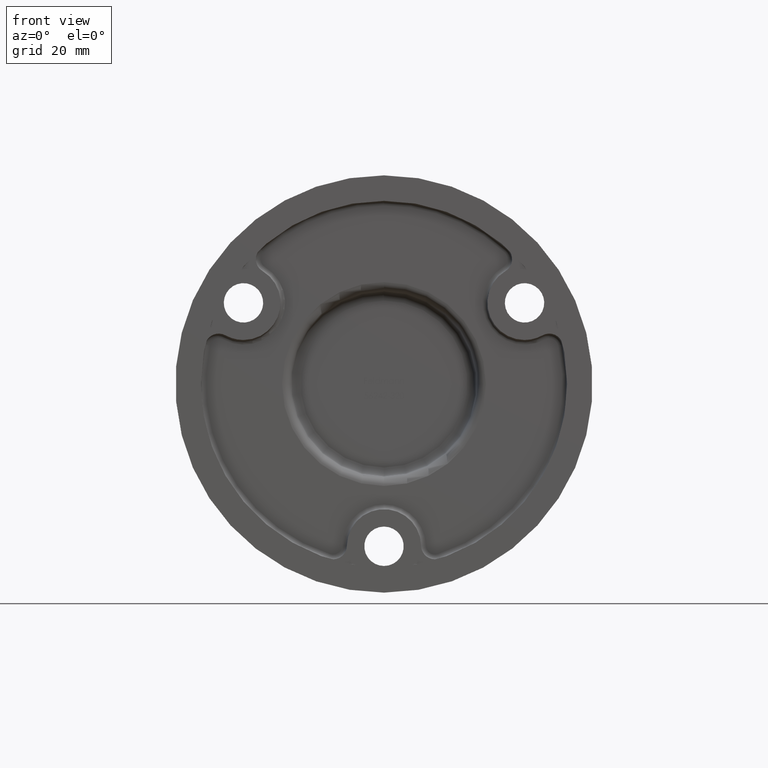
[diagram: clean part render]
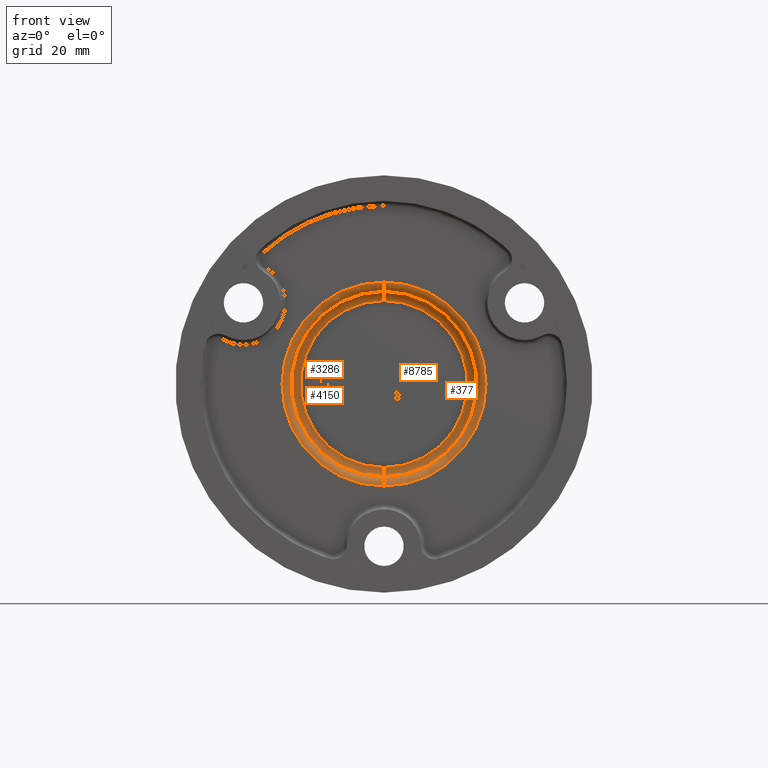
[diagram: same view with one multi-face feature highlighted, each face labeled with its STEP entity id]
A machine part, front view. The highlighted faces form ONE feature: a constant-radius fillet chain: 4 tangent blend faces with common blend radius 2 mm. The faces share edges in the B-rep.
Their STEP definitions:
[1] entity #3286 (Torus):
#18 = DIRECTION ( 'NONE',  ( 1.000000000000000000, 0.000000000000000000, 1.224646799147353207E-16 ) ) ;
#1205 = CIRCLE ( 'NONE', #9364, 22.00000000000000000 ) ;
#1368 = EDGE_LOOP ( 'NONE', ( #18055, #20402, #2345, #5283 ) ) ;
#1877 = AXIS2_PLACEMENT_3D ( 'NONE', #7322, #20863, #9289 ) ;
#2345 = ORIENTED_EDGE ( 'NONE', *, *, #13814, .T. ) ;
#3090 = CIRCLE ( 'NONE', #1877, 20.00000000000000000 ) ;
#3286 = ADVANCED_FACE ( 'NONE', ( #23684 ), #7331, .T. ) ;
#3474 = VERTEX_POINT ( 'NONE', #5093 ) ;
#5093 = CARTESIAN_POINT ( 'NONE',  ( 2.694222958124176809E-15, 2.000000000000000000, -22.00000000000000000 ) ) ;
#5283 = ORIENTED_EDGE ( 'NONE', *, *, #8832, .F. ) ;
#6933 = EDGE_CURVE ( 'NONE', #19809, #3474, #24028, .T. ) ;
#7322 = CARTESIAN_POINT ( 'NONE',  ( 0.000000000000000000, 4.000000000000000000, 0.000000000000000000 ) ) ;
#7331 = TOROIDAL_SURFACE ( 'NONE', #12419, 22.00000000000000000, 2.000000000000000000 ) ;
#8236 = DIRECTION ( 'NONE',  ( -0.000000000000000000, 1.000000000000000000, -0.000000000000000000 ) ) ;
#8330 = EDGE_CURVE ( 'NONE', #13752, #19809, #3090, .T. ) ;
#8832 = EDGE_CURVE ( 'NONE', #3474, #13420, #1205, .T. ) ;
#9172 = AXIS2_PLACEMENT_3D ( 'NONE', #10038, #18, #11739 ) ;
#9252 = CARTESIAN_POINT ( 'NONE',  ( 2.571758278209441661E-15, 4.000000000000000000, -20.00000000000000000 ) ) ;
#9289 = DIRECTION ( 'NONE',  ( 0.000000000000000000, 0.000000000000000000, 1.000000000000000000 ) ) ;
#9364 = AXIS2_PLACEMENT_3D ( 'NONE', #12062, #8236, #19993 ) ;
#10038 = CARTESIAN_POINT ( 'NONE',  ( 2.694222958124176809E-15, 4.000000000000000000, -22.00000000000000000 ) ) ;
#11093 = CIRCLE ( 'NONE', #15776, 2.000000000000001776 ) ;
#11739 = DIRECTION ( 'NONE',  ( 1.224646799147351482E-16, 0.000000000000000000, -1.000000000000000000 ) ) ;
#12062 = CARTESIAN_POINT ( 'NONE',  ( 0.000000000000000000, 2.000000000000000000, 0.000000000000000000 ) ) ;
#12063 = CARTESIAN_POINT ( 'NONE',  ( 0.000000000000000000, 4.000000000000000000, 20.00000000000000000 ) ) ;
#12222 = DIRECTION ( 'NONE',  ( -1.000000000000000000, 0.000000000000000000, 0.000000000000000000 ) ) ;
#12419 = AXIS2_PLACEMENT_3D ( 'NONE', #13897, #13723, #15837 ) ;
#13420 = VERTEX_POINT ( 'NONE', #15185 ) ;
#13723 = DIRECTION ( 'NONE',  ( -0.000000000000000000, 1.000000000000000000, -0.000000000000000000 ) ) ;
#13752 = VERTEX_POINT ( 'NONE', #12063 ) ;
#13814 = EDGE_CURVE ( 'NONE', #13752, #13420, #11093, .T. ) ;
#13897 = CARTESIAN_POINT ( 'NONE',  ( 0.000000000000000000, 4.000000000000000000, 0.000000000000000000 ) ) ;
#15185 = CARTESIAN_POINT ( 'NONE',  ( 0.000000000000000000, 2.000000000000000000, 22.00000000000000000 ) ) ;
#15776 = AXIS2_PLACEMENT_3D ( 'NONE', #22035, #12222, #18130 ) ;
#15837 = DIRECTION ( 'NONE',  ( 0.000000000000000000, 0.000000000000000000, 1.000000000000000000 ) ) ;
#18055 = ORIENTED_EDGE ( 'NONE', *, *, #6933, .F. ) ;
#18130 = DIRECTION ( 'NONE',  ( 0.000000000000000000, 0.000000000000000000, 1.000000000000000000 ) ) ;
#19809 = VERTEX_POINT ( 'NONE', #9252 ) ;
#19993 = DIRECTION ( 'NONE',  ( 0.000000000000000000, 0.000000000000000000, 1.000000000000000000 ) ) ;
#20402 = ORIENTED_EDGE ( 'NONE', *, *, #8330, .F. ) ;
#20863 = DIRECTION ( 'NONE',  ( 0.000000000000000000, -1.000000000000000000, 0.000000000000000000 ) ) ;
#22035 = CARTESIAN_POINT ( 'NONE',  ( 0.000000000000000000, 4.000000000000000000, 22.00000000000000000 ) ) ;
#23684 = FACE_OUTER_BOUND ( 'NONE', #1368, .T. ) ;
#24028 = CIRCLE ( 'NONE', #9172, 2.000000000000001776 ) ;
[2] entity #377 (Torus):
#18 = DIRECTION ( 'NONE',  ( 1.000000000000000000, 0.000000000000000000, 1.224646799147353207E-16 ) ) ;
#377 = ADVANCED_FACE ( 'NONE', ( #7757 ), #13817, .T. ) ;
#676 = DIRECTION ( 'NONE',  ( 0.000000000000000000, 0.000000000000000000, 1.000000000000000000 ) ) ;
#713 = EDGE_LOOP ( 'NONE', ( #7455, #10548, #18352, #2077 ) ) ;
#748 = EDGE_CURVE ( 'NONE', #13420, #3474, #18640, .T. ) ;
#901 = AXIS2_PLACEMENT_3D ( 'NONE', #18581, #22469, #11151 ) ;
#2077 = ORIENTED_EDGE ( 'NONE', *, *, #13814, .F. ) ;
#2392 = CARTESIAN_POINT ( 'NONE',  ( 0.000000000000000000, 4.000000000000000000, 0.000000000000000000 ) ) ;
#3474 = VERTEX_POINT ( 'NONE', #5093 ) ;
#4412 = EDGE_CURVE ( 'NONE', #19809, #13752, #17702, .T. ) ;
#5093 = CARTESIAN_POINT ( 'NONE',  ( 2.694222958124176809E-15, 2.000000000000000000, -22.00000000000000000 ) ) ;
#6446 = DIRECTION ( 'NONE',  ( -0.000000000000000000, 1.000000000000000000, -0.000000000000000000 ) ) ;
#6933 = EDGE_CURVE ( 'NONE', #19809, #3474, #24028, .T. ) ;
#7455 = ORIENTED_EDGE ( 'NONE', *, *, #4412, .F. ) ;
#7757 = FACE_OUTER_BOUND ( 'NONE', #713, .T. ) ;
#8624 = AXIS2_PLACEMENT_3D ( 'NONE', #2392, #6446, #676 ) ;
#9172 = AXIS2_PLACEMENT_3D ( 'NONE', #10038, #18, #11739 ) ;
#9252 = CARTESIAN_POINT ( 'NONE',  ( 2.571758278209441661E-15, 4.000000000000000000, -20.00000000000000000 ) ) ;
#10038 = CARTESIAN_POINT ( 'NONE',  ( 2.694222958124176809E-15, 4.000000000000000000, -22.00000000000000000 ) ) ;
#10548 = ORIENTED_EDGE ( 'NONE', *, *, #6933, .T. ) ;
#11093 = CIRCLE ( 'NONE', #15776, 2.000000000000001776 ) ;
#11151 = DIRECTION ( 'NONE',  ( 0.000000000000000000, 0.000000000000000000, 1.000000000000000000 ) ) ;
#11739 = DIRECTION ( 'NONE',  ( 1.224646799147351482E-16, 0.000000000000000000, -1.000000000000000000 ) ) ;
#12063 = CARTESIAN_POINT ( 'NONE',  ( 0.000000000000000000, 4.000000000000000000, 20.00000000000000000 ) ) ;
#12222 = DIRECTION ( 'NONE',  ( -1.000000000000000000, 0.000000000000000000, 0.000000000000000000 ) ) ;
#13420 = VERTEX_POINT ( 'NONE', #15185 ) ;
#13752 = VERTEX_POINT ( 'NONE', #12063 ) ;
#13814 = EDGE_CURVE ( 'NONE', #13752, #13420, #11093, .T. ) ;
#13817 = TOROIDAL_SURFACE ( 'NONE', #8624, 22.00000000000000000, 2.000000000000000000 ) ;
#13969 = DIRECTION ( 'NONE',  ( 0.000000000000000000, 0.000000000000000000, 1.000000000000000000 ) ) ;
#15108 = AXIS2_PLACEMENT_3D ( 'NONE', #19883, #20053, #13969 ) ;
#15185 = CARTESIAN_POINT ( 'NONE',  ( 0.000000000000000000, 2.000000000000000000, 22.00000000000000000 ) ) ;
#15776 = AXIS2_PLACEMENT_3D ( 'NONE', #22035, #12222, #18130 ) ;
#17702 = CIRCLE ( 'NONE', #901, 20.00000000000000000 ) ;
#18130 = DIRECTION ( 'NONE',  ( 0.000000000000000000, 0.000000000000000000, 1.000000000000000000 ) ) ;
#18352 = ORIENTED_EDGE ( 'NONE', *, *, #748, .F. ) ;
#18581 = CARTESIAN_POINT ( 'NONE',  ( 0.000000000000000000, 4.000000000000000000, 0.000000000000000000 ) ) ;
#18640 = CIRCLE ( 'NONE', #15108, 22.00000000000000000 ) ;
#19809 = VERTEX_POINT ( 'NONE', #9252 ) ;
#19883 = CARTESIAN_POINT ( 'NONE',  ( 0.000000000000000000, 2.000000000000000000, 0.000000000000000000 ) ) ;
#20053 = DIRECTION ( 'NONE',  ( -0.000000000000000000, 1.000000000000000000, -0.000000000000000000 ) ) ;
#22035 = CARTESIAN_POINT ( 'NONE',  ( 0.000000000000000000, 4.000000000000000000, 22.00000000000000000 ) ) ;
#22469 = DIRECTION ( 'NONE',  ( 0.000000000000000000, -1.000000000000000000, 0.000000000000000000 ) ) ;
#24028 = CIRCLE ( 'NONE', #9172, 2.000000000000001776 ) ;
[3] entity #8785 (Torus):
#159 = CIRCLE ( 'NONE', #9422, 2.000000000000001776 ) ;
#378 = EDGE_CURVE ( 'NONE', #15911, #13752, #159, .T. ) ;
#484 = DIRECTION ( 'NONE',  ( 0.000000000000000000, 0.000000000000000000, -1.000000000000000000 ) ) ;
#724 = ORIENTED_EDGE ( 'NONE', *, *, #18291, .T. ) ;
#901 = AXIS2_PLACEMENT_3D ( 'NONE', #18581, #22469, #11151 ) ;
#1521 = DIRECTION ( 'NONE',  ( -1.000000000000000000, -0.000000000000000000, -0.000000000000000000 ) ) ;
#2048 = AXIS2_PLACEMENT_3D ( 'NONE', #21553, #8193, #484 ) ;
#2126 = CIRCLE ( 'NONE', #14570, 2.000000000000001776 ) ;
#2477 = ORIENTED_EDGE ( 'NONE', *, *, #378, .F. ) ;
#2483 = DIRECTION ( 'NONE',  ( 0.000000000000000000, -1.000000000000000000, 0.000000000000000000 ) ) ;
#3343 = CARTESIAN_POINT ( 'NONE',  ( 0.000000000000000000, 4.000000000000000000, -18.00000000000000355 ) ) ;
#4412 = EDGE_CURVE ( 'NONE', #19809, #13752, #17702, .T. ) ;
#5791 = AXIS2_PLACEMENT_3D ( 'NONE', #13581, #2483, #18046 ) ;
#8152 = CARTESIAN_POINT ( 'NONE',  ( 2.204364238465235822E-15, 4.000000000000000000, 18.00000000000000355 ) ) ;
#8193 = DIRECTION ( 'NONE',  ( 0.000000000000000000, -1.000000000000000000, 0.000000000000000000 ) ) ;
#8320 = CARTESIAN_POINT ( 'NONE',  ( 2.326828918379971365E-15, 6.000000000000000000, 18.00000000000000355 ) ) ;
#8785 = ADVANCED_FACE ( 'NONE', ( #16668 ), #17263, .F. ) ;
#9252 = CARTESIAN_POINT ( 'NONE',  ( 2.571758278209441661E-15, 4.000000000000000000, -20.00000000000000000 ) ) ;
#9422 = AXIS2_PLACEMENT_3D ( 'NONE', #8152, #10094, #21772 ) ;
#10094 = DIRECTION ( 'NONE',  ( 1.000000000000000000, 0.000000000000000000, -1.224646799147353207E-16 ) ) ;
#11151 = DIRECTION ( 'NONE',  ( 0.000000000000000000, 0.000000000000000000, 1.000000000000000000 ) ) ;
#12063 = CARTESIAN_POINT ( 'NONE',  ( 0.000000000000000000, 4.000000000000000000, 20.00000000000000000 ) ) ;
#13581 = CARTESIAN_POINT ( 'NONE',  ( 0.000000000000000000, 4.000000000000000000, 0.000000000000000000 ) ) ;
#13752 = VERTEX_POINT ( 'NONE', #12063 ) ;
#14570 = AXIS2_PLACEMENT_3D ( 'NONE', #3343, #1521, #18549 ) ;
#14770 = ORIENTED_EDGE ( 'NONE', *, *, #18992, .F. ) ;
#15911 = VERTEX_POINT ( 'NONE', #8320 ) ;
#16668 = FACE_OUTER_BOUND ( 'NONE', #24855, .T. ) ;
#17263 = TOROIDAL_SURFACE ( 'NONE', #5791, 18.00000000000000355, 2.000000000000000000 ) ;
#17702 = CIRCLE ( 'NONE', #901, 20.00000000000000000 ) ;
#18046 = DIRECTION ( 'NONE',  ( 0.000000000000000000, 0.000000000000000000, -1.000000000000000000 ) ) ;
#18291 = EDGE_CURVE ( 'NONE', #22028, #19809, #2126, .T. ) ;
#18549 = DIRECTION ( 'NONE',  ( 0.000000000000000000, 0.000000000000000000, 1.000000000000000000 ) ) ;
#18581 = CARTESIAN_POINT ( 'NONE',  ( 0.000000000000000000, 4.000000000000000000, 0.000000000000000000 ) ) ;
#18992 = EDGE_CURVE ( 'NONE', #22028, #15911, #20290, .T. ) ;
#19809 = VERTEX_POINT ( 'NONE', #9252 ) ;
#20290 = CIRCLE ( 'NONE', #2048, 18.00000000000000355 ) ;
#21553 = CARTESIAN_POINT ( 'NONE',  ( 0.000000000000000000, 6.000000000000000000, 0.000000000000000000 ) ) ;
#21772 = DIRECTION ( 'NONE',  ( -1.224646799147351482E-16, 0.000000000000000000, -1.000000000000000000 ) ) ;
#22028 = VERTEX_POINT ( 'NONE', #23737 ) ;
#22469 = DIRECTION ( 'NONE',  ( 0.000000000000000000, -1.000000000000000000, 0.000000000000000000 ) ) ;
#23737 = CARTESIAN_POINT ( 'NONE',  ( 0.000000000000000000, 6.000000000000000000, -18.00000000000000355 ) ) ;
#23773 = ORIENTED_EDGE ( 'NONE', *, *, #4412, .T. ) ;
#24855 = EDGE_LOOP ( 'NONE', ( #2477, #14770, #724, #23773 ) ) ;
[4] entity #4150 (Torus):
#159 = CIRCLE ( 'NONE', #9422, 2.000000000000001776 ) ;
#378 = EDGE_CURVE ( 'NONE', #15911, #13752, #159, .T. ) ;
#1521 = DIRECTION ( 'NONE',  ( -1.000000000000000000, -0.000000000000000000, -0.000000000000000000 ) ) ;
#1877 = AXIS2_PLACEMENT_3D ( 'NONE', #7322, #20863, #9289 ) ;
#2126 = CIRCLE ( 'NONE', #14570, 2.000000000000001776 ) ;
#3090 = CIRCLE ( 'NONE', #1877, 20.00000000000000000 ) ;
#3343 = CARTESIAN_POINT ( 'NONE',  ( 0.000000000000000000, 4.000000000000000000, -18.00000000000000355 ) ) ;
#4093 = EDGE_LOOP ( 'NONE', ( #24688, #4151, #22304, #20271 ) ) ;
#4150 = ADVANCED_FACE ( 'NONE', ( #11675 ), #21025, .F. ) ;
#4151 = ORIENTED_EDGE ( 'NONE', *, *, #378, .T. ) ;
#7322 = CARTESIAN_POINT ( 'NONE',  ( 0.000000000000000000, 4.000000000000000000, 0.000000000000000000 ) ) ;
#8152 = CARTESIAN_POINT ( 'NONE',  ( 2.204364238465235822E-15, 4.000000000000000000, 18.00000000000000355 ) ) ;
#8312 = DIRECTION ( 'NONE',  ( 0.000000000000000000, 0.000000000000000000, -1.000000000000000000 ) ) ;
#8320 = CARTESIAN_POINT ( 'NONE',  ( 2.326828918379971365E-15, 6.000000000000000000, 18.00000000000000355 ) ) ;
#8330 = EDGE_CURVE ( 'NONE', #13752, #19809, #3090, .T. ) ;
#9089 = CIRCLE ( 'NONE', #15871, 18.00000000000000355 ) ;
#9252 = CARTESIAN_POINT ( 'NONE',  ( 2.571758278209441661E-15, 4.000000000000000000, -20.00000000000000000 ) ) ;
#9289 = DIRECTION ( 'NONE',  ( 0.000000000000000000, 0.000000000000000000, 1.000000000000000000 ) ) ;
#9422 = AXIS2_PLACEMENT_3D ( 'NONE', #8152, #10094, #21772 ) ;
#10094 = DIRECTION ( 'NONE',  ( 1.000000000000000000, 0.000000000000000000, -1.224646799147353207E-16 ) ) ;
#10796 = CARTESIAN_POINT ( 'NONE',  ( 0.000000000000000000, 4.000000000000000000, 0.000000000000000000 ) ) ;
#10870 = DIRECTION ( 'NONE',  ( 0.000000000000000000, 0.000000000000000000, -1.000000000000000000 ) ) ;
#11675 = FACE_OUTER_BOUND ( 'NONE', #4093, .T. ) ;
#12063 = CARTESIAN_POINT ( 'NONE',  ( 0.000000000000000000, 4.000000000000000000, 20.00000000000000000 ) ) ;
#13752 = VERTEX_POINT ( 'NONE', #12063 ) ;
#14570 = AXIS2_PLACEMENT_3D ( 'NONE', #3343, #1521, #18549 ) ;
#14843 = DIRECTION ( 'NONE',  ( 0.000000000000000000, -1.000000000000000000, 0.000000000000000000 ) ) ;
#15871 = AXIS2_PLACEMENT_3D ( 'NONE', #21837, #21763, #8312 ) ;
#15911 = VERTEX_POINT ( 'NONE', #8320 ) ;
#17562 = AXIS2_PLACEMENT_3D ( 'NONE', #10796, #14843, #10870 ) ;
#18291 = EDGE_CURVE ( 'NONE', #22028, #19809, #2126, .T. ) ;
#18502 = EDGE_CURVE ( 'NONE', #15911, #22028, #9089, .T. ) ;
#18549 = DIRECTION ( 'NONE',  ( 0.000000000000000000, 0.000000000000000000, 1.000000000000000000 ) ) ;
#19809 = VERTEX_POINT ( 'NONE', #9252 ) ;
#20271 = ORIENTED_EDGE ( 'NONE', *, *, #18291, .F. ) ;
#20863 = DIRECTION ( 'NONE',  ( 0.000000000000000000, -1.000000000000000000, 0.000000000000000000 ) ) ;
#21025 = TOROIDAL_SURFACE ( 'NONE', #17562, 18.00000000000000355, 2.000000000000000000 ) ;
#21763 = DIRECTION ( 'NONE',  ( 0.000000000000000000, -1.000000000000000000, 0.000000000000000000 ) ) ;
#21772 = DIRECTION ( 'NONE',  ( -1.224646799147351482E-16, 0.000000000000000000, -1.000000000000000000 ) ) ;
#21837 = CARTESIAN_POINT ( 'NONE',  ( 0.000000000000000000, 6.000000000000000000, 0.000000000000000000 ) ) ;
#22028 = VERTEX_POINT ( 'NONE', #23737 ) ;
#22304 = ORIENTED_EDGE ( 'NONE', *, *, #8330, .T. ) ;
#23737 = CARTESIAN_POINT ( 'NONE',  ( 0.000000000000000000, 6.000000000000000000, -18.00000000000000355 ) ) ;
#24688 = ORIENTED_EDGE ( 'NONE', *, *, #18502, .F. ) ;